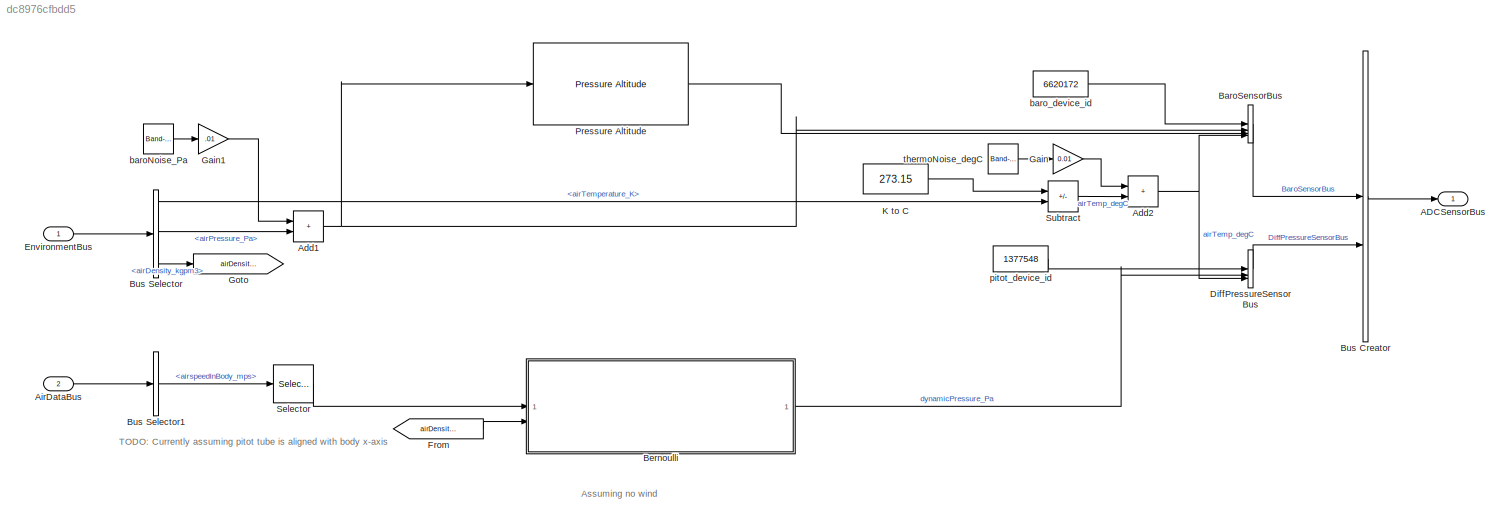
MODEL slx_dc8976cfbdd5
KIND model
BLOCK [Outport] ADCSensorBus
  OutDataTypeStr = Bus: ADCSensorBus
BLOCK [Sum] Add1
  IconShape = rectangular
BLOCK [Sum] Add2
  IconShape = rectangular
BLOCK [Inport] AirDataBus
  OutDataTypeStr = Bus: AirDataBus
  Port = 2
BLOCK [BusCreator] BaroSensorBus
  DisplayOption = bar
  InheritFromInputs = off
  Inputs = 4
  OutDataTypeStr = Bus: BaroSensorBus
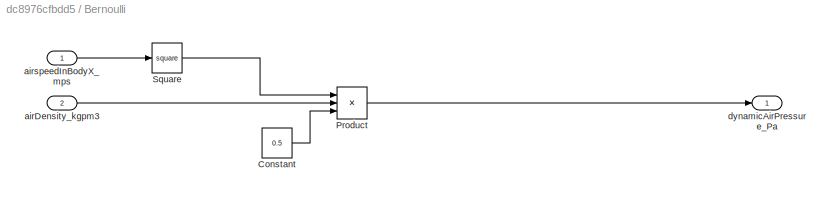
BLOCK [SubSystem] Bernoulli
BLOCK [Constant] Bernoulli/Constant
  Value = 0.5
BLOCK [Product] Bernoulli/Product
  Inputs = 3
BLOCK [Math] Bernoulli/Square
  Operator = square
BLOCK [Inport] Bernoulli/airDensity_kgpm3
  Port = 2
BLOCK [Inport] Bernoulli/airspeedInBodyX_mps
BLOCK [Outport] Bernoulli/dynamicAirPressure_Pa
BLOCK [BusCreator] Bus Creator
  DisplayOption = bar
  InheritFromInputs = off
  Inputs = 2
  OutDataTypeStr = Bus: ADCSensorBus
BLOCK [BusSelector] Bus Selector
  OutputSignals = AirEnvironment.airTemperature_K,AirEnvironment.airPressure_Pa,AirEnvironment.airDensity_kgpm3
BLOCK [BusSelector] Bus Selector1
  OutputSignals = airspeedInBody_mps
BLOCK [BusCreator] DiffPressureSensorBus
  DisplayOption = bar
  InheritFromInputs = off
  Inputs = 3
  OutDataTypeStr = Bus: DiffPressureSensorBus
BLOCK [Inport] EnvironmentBus
  OutDataTypeStr = Bus: EnvironmentBus
BLOCK [From] From
  GotoTag = airDensity_kgpm3
BLOCK [Gain] Gain
  Gain = 0.01
BLOCK [Gain] Gain1
  Gain = .01
BLOCK [Goto] Goto
  GotoTag = airDensity_kgpm3
BLOCK [Constant] K to C
  Value = 273.15
BLOCK [Reference] Pressure Altitude  REF=aerolibatmos2/Pressure Altitude
  SourceBlock = aerolibatmos2/Pressure Altitude
  SourceType = Pressure Altitude
BLOCK [Selector] Selector
  IndexOptions = Index vector (dialog)
  Indices = 1
  InputPortWidth = 3
  OutputSizes = 1
BLOCK [Sum] Subtract
  IconShape = rectangular
  Inputs = -+
BLOCK [Reference] baroNoise_Pa  REF=simulink/Sources/Band-Limited
White Noise
  SourceBlock = simulink/Sources/Band-Limited\nWhite Noise
  SourceType = Band-Limited White Noise.
BLOCK [Constant] baro_device_id
  OutDataTypeStr = Inherit: Inherit via back propagation
  Value = 6620172
BLOCK [Constant] pitot_device_id
  OutDataTypeStr = Inherit: Inherit via back propagation
  Value = 1377548
BLOCK [Reference] thermoNoise_degC  REF=simulink/Sources/Band-Limited
White Noise
  SourceBlock = simulink/Sources/Band-Limited\nWhite Noise
  SourceType = Band-Limited White Noise.
ANNOTATION (root): Assuming no wind
ANNOTATION (root): TODO: Currently assuming pitot tube is aligned with body x-axis
NET Add1:1 -> BaroSensorBus:2, Pressure Altitude:1
NET Add2:1 -> BaroSensorBus:4, DiffPressureSensorBus:3
LINE AirDataBus:1 -> Bus Selector1:1
LINE BaroSensorBus:1 -> Bus Creator:1
LINE Bernoulli/Constant:1 -> Bernoulli/Product:3
LINE Bernoulli/Product:1 -> Bernoulli/dynamicAirPressure_Pa:1
LINE Bernoulli/Square:1 -> Bernoulli/Product:1
LINE Bernoulli/airDensity_kgpm3:1 -> Bernoulli/Product:2
LINE Bernoulli/airspeedInBodyX_mps:1 -> Bernoulli/Square:1
LINE Bernoulli:1 -> DiffPressureSensorBus:2
LINE Bus Creator:1 -> ADCSensorBus:1
LINE Bus Selector1:1 -> Selector:1
LINE Bus Selector:1 -> Subtract:2
LINE Bus Selector:2 -> Add1:2
LINE Bus Selector:3 -> Goto:1
LINE DiffPressureSensorBus:1 -> Bus Creator:2
LINE EnvironmentBus:1 -> Bus Selector:1
LINE From:1 -> Bernoulli:2
LINE Gain1:1 -> Add1:1
LINE Gain:1 -> Add2:1
LINE K to C:1 -> Subtract:1
LINE Pressure Altitude:1 -> BaroSensorBus:3
LINE Selector:1 -> Bernoulli:1
LINE Subtract:1 -> Add2:2
LINE baroNoise_Pa:1 -> Gain1:1
LINE baro_device_id:1 -> BaroSensorBus:1
LINE pitot_device_id:1 -> DiffPressureSensorBus:1
LINE thermoNoise_degC:1 -> Gain:1
note: NET lines group one-source signal fan-out (src -> all destinations, sorted); 1:1 wires keep LINE
CHART Test Sequence states=10 transitions=10
  STATE_LABEL 'Scenario_1'
  STATE_LABEL 'Initialize\nstopTest = false;\n\n%% Initialize data outputs.\nEnvironmentBus_EarthEnvironment.gravityScalar_mps2 = 9.81;\nEnvironmentBus_AirEnvironment.airTemperature_K = 288.15; %standard, 15deg C\nEnvironmentBus_AirEnvironment.airPressure_Pa = 101325; %standard\nEnvironmentBus_AirEnvironment.airDensity_kgpm3 = 1.225; %kgpm3 at 15 deg C\nEnvironmentBus_AirEnvironment.windSpeedInNED_mps = zeros(3,1);\nEnvi...<+206ch>'
  STATE_LABEL "checkSensors\nverify(isClose(ADCSensorBus.BaroSensorBus.altitude_m, 0, 'atol', 20)) %check baro altitude is ~0 MSL\nverify(isClose(ADCSensorBus.BaroSensorBus.pressure_pa, 101325, 'atol', 100))\nverify(isClose(ADCSensorBus.BaroSensorBus.temperature_degC, 15, 'atol', 2))\nverify(isClose(ADCSensorBus.DiffPressureSensorBus.differential_pressure_pa, 0, 'atol', 100))\nverify(isClose(ADCSensorBus.DiffPressure...<+43ch>"
  STATE_LABEL 'check10kft\nEnvironmentBus_AirEnvironment.airTemperature_K = 268;  %standard @ 20 kft\nEnvironmentBus_AirEnvironment.airPressure_Pa = 69681.66; %standard\nEnvironmentBus_AirEnvironment.airDensity_kgpm3 = 0.4135; %kgpm3\nEnvironmentBus_AirEnvironment.windSpeedInNED_mps = zeros(3,1);\nEnvironmentBus_AirEnvironment.speedOfSound_mps = 328.4;'
  STATE_LABEL "checkSensors10kft\nverify(isClose(ADCSensorBus.BaroSensorBus.altitude_m, 3048, 'atol', 20)) %check baro altitude is ~0 MSL\nverify(isClose(ADCSensorBus.BaroSensorBus.pressure_pa,  69681.66, 'atol', 100))\nverify(isClose(ADCSensorBus.BaroSensorBus.temperature_degC, -4.8, 'atol', 2))\nverify(isClose(ADCSensorBus.DiffPressureSensorBus.differential_pressure_pa, 0, 'atol', 100))\nverify(isClose(ADCSensorBus...<+58ch>"
  STATE_LABEL 'check20kft\nEnvironmentBus_AirEnvironment.airTemperature_K = 248; %standard @ 20 kft\nEnvironmentBus_AirEnvironment.airPressure_Pa = 46563.26; %standard\nEnvironmentBus_AirEnvironment.airDensity_kgpm3 = 0.3639; %kgpm3\nEnvironmentBus_AirEnvironment.windSpeedInNED_mps = zeros(3,1);\nEnvironmentBus_AirEnvironment.speedOfSound_mps = 316;'
  STATE_LABEL "checkSensors20kft\nverify(isClose(ADCSensorBus.BaroSensorBus.altitude_m, 6096, 'atol', 20)) %check baro altitude is ~0 MSL\nverify(isClose(ADCSensorBus.BaroSensorBus.pressure_pa,  46563.26, 'atol', 100))\nverify(isClose(ADCSensorBus.BaroSensorBus.temperature_degC, -24.624, 'atol', 2))\nverify(isClose(ADCSensorBus.DiffPressureSensorBus.differential_pressure_pa, 0, 'atol', 100))\nverify(isClose(ADCSensor...<+64ch>"
  STATE_LABEL "addAirspeed\nAirDataBus.airspeedInBody_mps = [100 0 0]';\n"
  STATE_LABEL 'checkDiffPress\nverify(ADCSensorBus.DiffPressureSensorBus.differential_pressure_pa > 0) %TODO: check sign on diff press and check with alpha, beta once model is updated to use these\n'
  STATE_LABEL 'EndTest\nstopTest = true;'
  STATE_LABEL '[\ntrue\n]'
  STATE_LABEL '[\ntrue\n]'
  STATE_LABEL '[\ntrue\n]'
  STATE_LABEL '[\ntrue\n]'
  STATE_LABEL '[\ntrue\n]'
  STATE_LABEL '[\ntrue\n]'
  STATE_LABEL '[\ntrue\n]'
  STATE_LABEL '[\ntrue\n]'
  STATE_LABEL 'Initialize\nstopTest = false;\n\n%% Initialize data outputs.\nEnvironmentBus_EarthEnvironment.gravityScalar_mps2 = 9.81;\nEnvironmentBus_AirEnvironment.airTemperature_K = 288.15; %standard, 15deg C\nEnvironmentBus_AirEnvironment.airPressure_Pa = 101325; %standard\nEnvironmentBus_AirEnvironment.airDensity_kgpm3 = 1.225; %kgpm3 at 15 deg C\nEnvironmentBus_AirEnvironment.windSpeedInNED_mps = zeros(3,1);\nEnvi...<+206ch>'
  STATE_LABEL "checkSensors\nverify(isClose(ADCSensorBus.BaroSensorBus.altitude_m, 0, 'atol', 20)) %check baro altitude is ~0 MSL\nverify(isClose(ADCSensorBus.BaroSensorBus.pressure_pa, 101325, 'atol', 100))\nverify(isClose(ADCSensorBus.BaroSensorBus.temperature_degC, 15, 'atol', 2))\nverify(isClose(ADCSensorBus.DiffPressureSensorBus.differential_pressure_pa, 0, 'atol', 100))\nverify(isClose(ADCSensorBus.DiffPressure...<+43ch>"
  STATE_LABEL 'check10kft\nEnvironmentBus_AirEnvironment.airTemperature_K = 268;  %standard @ 20 kft\nEnvironmentBus_AirEnvironment.airPressure_Pa = 69681.66; %standard\nEnvironmentBus_AirEnvironment.airDensity_kgpm3 = 0.4135; %kgpm3\nEnvironmentBus_AirEnvironment.windSpeedInNED_mps = zeros(3,1);\nEnvironmentBus_AirEnvironment.speedOfSound_mps = 328.4;'
  STATE_LABEL "checkSensors10kft\nverify(isClose(ADCSensorBus.BaroSensorBus.altitude_m, 3048, 'atol', 20)) %check baro altitude is ~0 MSL\nverify(isClose(ADCSensorBus.BaroSensorBus.pressure_pa,  69681.66, 'atol', 100))\nverify(isClose(ADCSensorBus.BaroSensorBus.temperature_degC, -4.8, 'atol', 2))\nverify(isClose(ADCSensorBus.DiffPressureSensorBus.differential_pressure_pa, 0, 'atol', 100))\nverify(isClose(ADCSensorBus...<+58ch>"
  STATE_LABEL 'check20kft\nEnvironmentBus_AirEnvironment.airTemperature_K = 248; %standard @ 20 kft\nEnvironmentBus_AirEnvironment.airPressure_Pa = 46563.26; %standard\nEnvironmentBus_AirEnvironment.airDensity_kgpm3 = 0.3639; %kgpm3\nEnvironmentBus_AirEnvironment.windSpeedInNED_mps = zeros(3,1);\nEnvironmentBus_AirEnvironment.speedOfSound_mps = 316;'
  STATE_LABEL "checkSensors20kft\nverify(isClose(ADCSensorBus.BaroSensorBus.altitude_m, 6096, 'atol', 20)) %check baro altitude is ~0 MSL\nverify(isClose(ADCSensorBus.BaroSensorBus.pressure_pa,  46563.26, 'atol', 100))\nverify(isClose(ADCSensorBus.BaroSensorBus.temperature_degC, -24.624, 'atol', 2))\nverify(isClose(ADCSensorBus.DiffPressureSensorBus.differential_pressure_pa, 0, 'atol', 100))\nverify(isClose(ADCSensor...<+64ch>"
  STATE_LABEL "addAirspeed\nAirDataBus.airspeedInBody_mps = [100 0 0]';\n"
  STATE_LABEL 'checkDiffPress\nverify(ADCSensorBus.DiffPressureSensorBus.differential_pressure_pa > 0) %TODO: check sign on diff press and check with alpha, beta once model is updated to use these\n'
  STATE_LABEL 'EndTest\nstopTest = true;'
